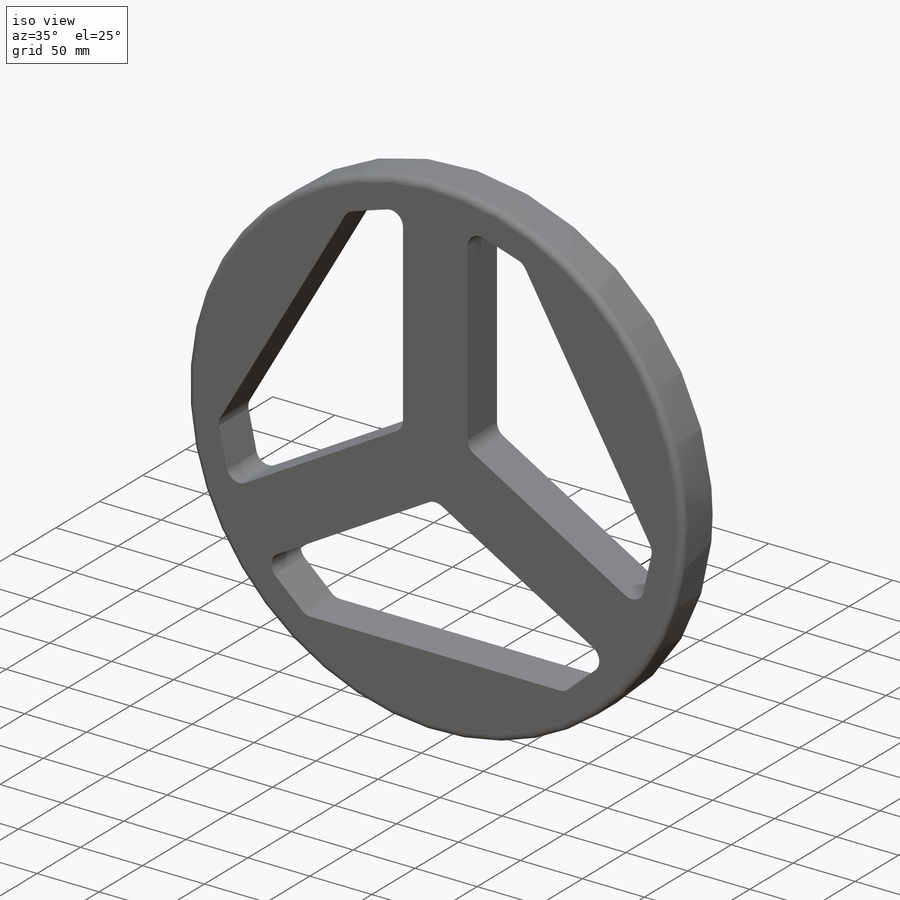
[diagram: iso view]
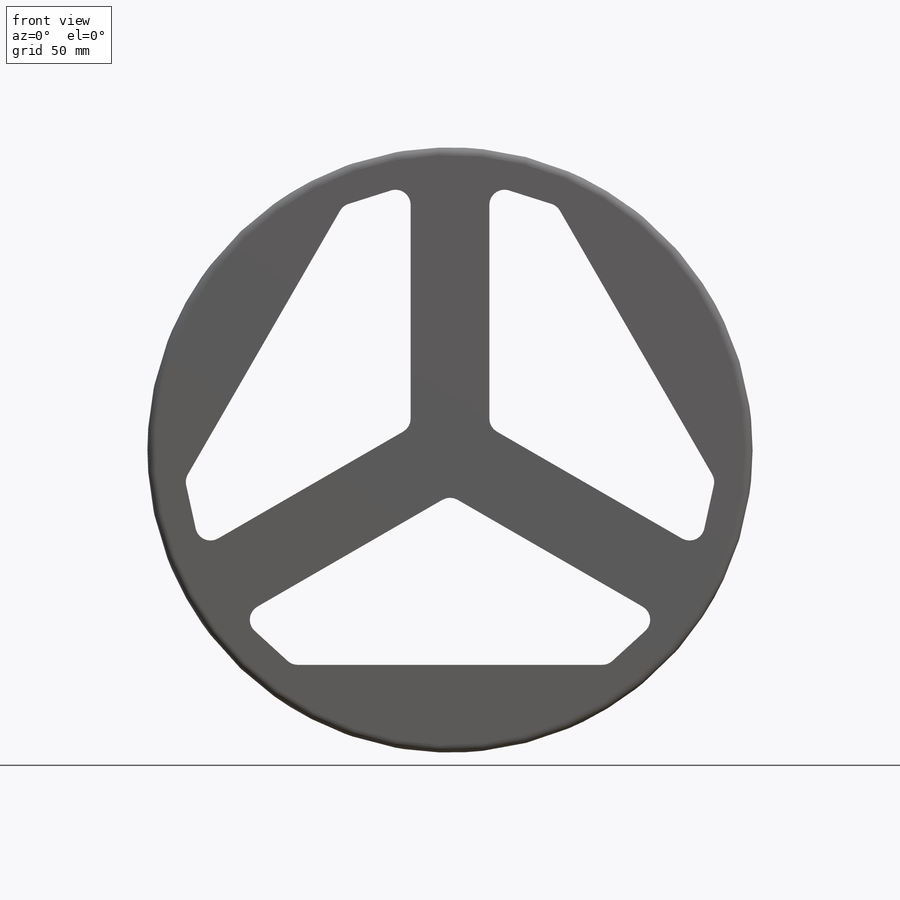
[diagram: front view]
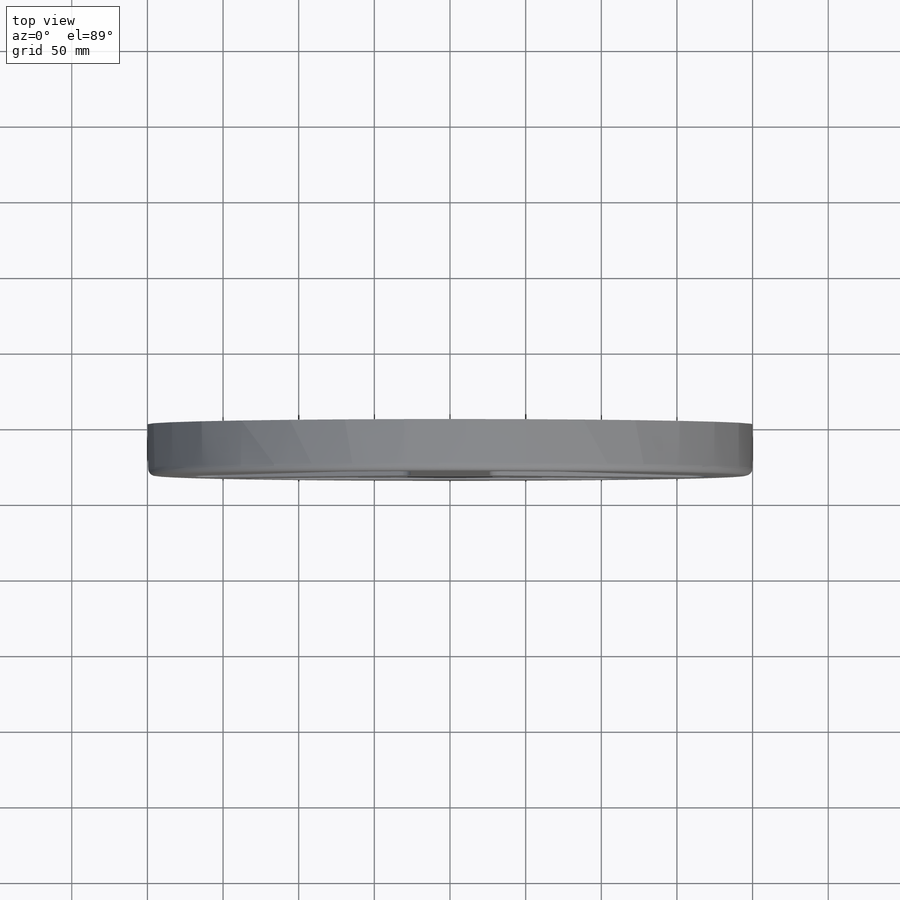
[diagram: top view]
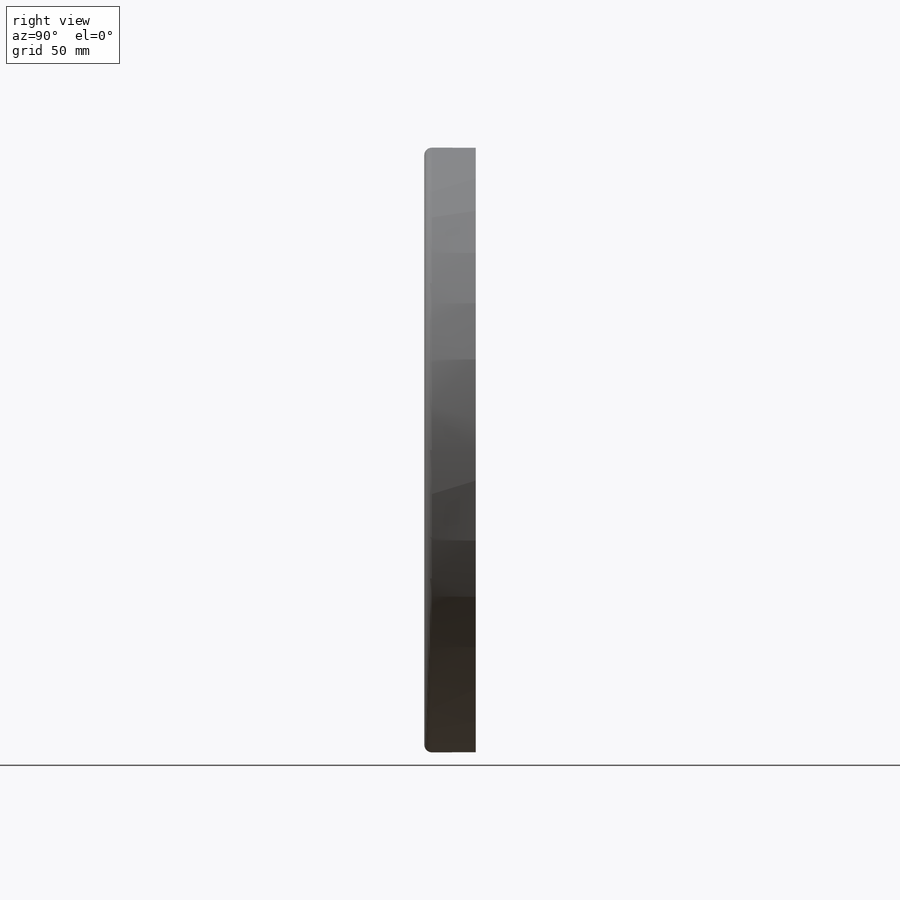
[diagram: right view]
SOLIDWORKS PART (.sldprt)
format: sldprt  version: not decoded by parser v0  size: 314,368 bytes
history: native  units: mm
features: fillet x19, plane x3, sketch x2, material x1, extrude x1, cut_extrude x1, pattern_circular x1, shell x1 (+13 scaffold rows collapsed)
feature tree (42):
  scaffold x13  (default folders/planes/origin — collapsed)
  material  "Material <não especificado>"
  plane  "Plano frontal"
  plane  "Plano superior"
  plane  "Plano direito"
  sketch  "Esboço2"  dims[D1=~44.904024mm]
  extrude  "Extrusão2"  Depth=34mm
  sketch  "Esboço4"  dims[c1.D1=~110.431868mm c2.D1=120.0deg c3.D1=~192.594134mm c4.D1=~56.484721deg c5.D1=~191.530011mm c6.D1=~116.484721deg c7.D1=58.0mm c7.D2=105.0mm c7.D3=~146.930053mm c8.D3=120.0deg c9.D3=~89.035468mm c10.D3=120.0deg c11.D3=~173.796166mm c12.D3=60.0deg c12.D4=~173.796166mm c13.D4=60.0deg c13.D2=105.0mm c13.D3=135.0mm c14.D2=13.0mm c14.D3=13.0mm c14.D5=26.0mm]
  cut_extrude  "Extrusão3"  [1 undecoded]
  pattern_circular  "PadrãoCircular1"  Count=3 Angle=360deg
  shell  "Casca1"  Thickness=3mm
  fillet  "Filete1"  Radius=10mm
  fillet  "Filete2"  Radius=10mm
  fillet  "Filete3"  Radius=10mm
  fillet  "Filete4"  Radius=10mm
  fillet  "Filete5"  Radius=10mm
  fillet  "Filete6"  Radius=10mm
  fillet  "Filete7"  Radius=10mm
  fillet  "Filete8"  Radius=10mm
  fillet  "Filete9"  Radius=10mm
  fillet  "Filete10"  Radius=10mm
  fillet  "Filete11"  Radius=10mm
  fillet  "Filete12"  Radius=10mm
  fillet  "Filete13"  Radius=10mm
  fillet  "Filete14"  Radius=10mm
  fillet  "Filete15"  Radius=10mm
  fillet  "Filete16"  Radius=10mm
  fillet  "Filete17"  Radius=10mm
  fillet  "Filete18"  Radius=10mm
  fillet  "Filete19"  Radius=5mm
decode coverage: 24 of 25 modeling features carry decoded parameters
note: ~ marks probable driven/reference dimensions
note: 1 parameter value undecoded
note: suppression state not decoded; provenance and decode notes live in map.json
